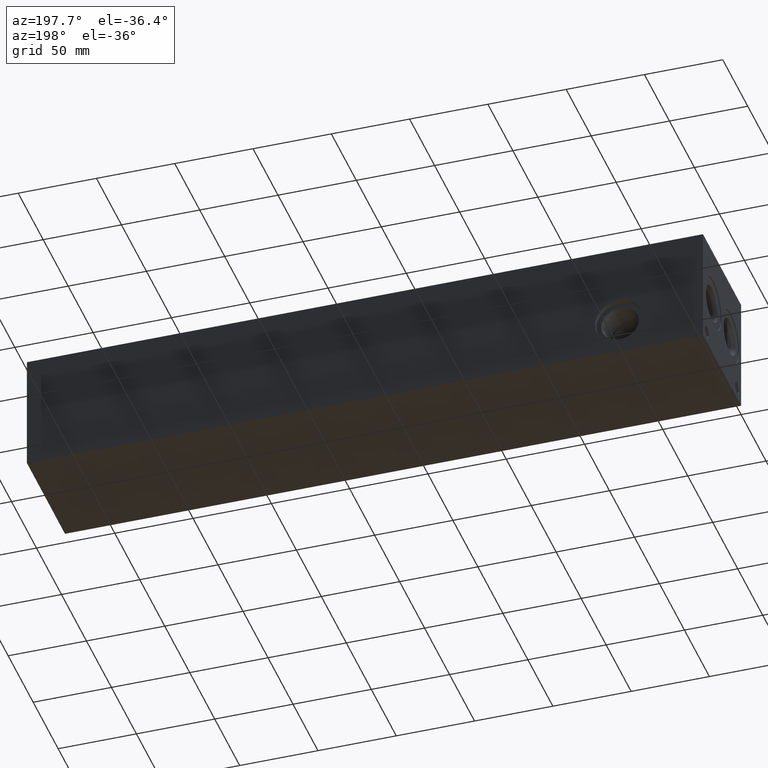
[diagram: clean part render]
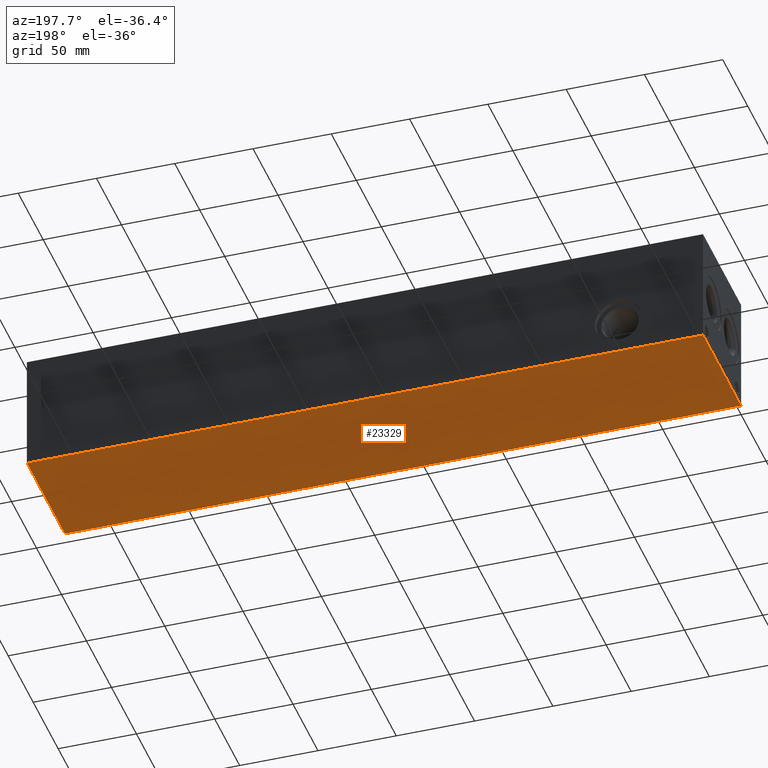
[diagram: same view with one face highlighted and labeled with its STEP entity id]
A machine part, auxiliary view. The second image highlights one B-rep face of the part: STEP entity #23329.
In plain terms, the highlighted planar face has unit normal (0, 0, 1).
Its self-contained STEP definition (entity closure, byte-faithful):
#2063=PLANE('',#25137);
#3287=FACE_OUTER_BOUND('',#4767,.T.);
#4767=EDGE_LOOP('',(#21116,#21117,#21118,#21119));
#4812=LINE('',#30933,#6686);
#6166=LINE('',#38013,#8040);
#6225=LINE('',#38285,#8099);
#6640=LINE('',#40892,#8514);
#6686=VECTOR('',#25208,10.);
#8040=VECTOR('',#27508,10.);
#8099=VECTOR('',#27621,10.);
#8514=VECTOR('',#30592,10.);
#9106=VERTEX_POINT('',#30931);
#9107=VERTEX_POINT('',#30932);
#10376=VERTEX_POINT('',#38012);
#10434=VERTEX_POINT('',#38284);
#11421=EDGE_CURVE('',#9106,#9107,#4812,.T.);
#13307=EDGE_CURVE('',#9107,#10376,#6166,.T.);
#13390=EDGE_CURVE('',#10434,#9106,#6225,.T.);
#14604=EDGE_CURVE('',#10376,#10434,#6640,.T.);
#21116=ORIENTED_EDGE('',*,*,#11421,.F.);
#21117=ORIENTED_EDGE('',*,*,#13390,.F.);
#21118=ORIENTED_EDGE('',*,*,#14604,.F.);
#21119=ORIENTED_EDGE('',*,*,#13307,.F.);
#23329=ADVANCED_FACE('',(#3287),#2063,.F.);
#25137=AXIS2_PLACEMENT_3D('',#40897,#30600,#30601);
#25208=DIRECTION('',(1.,0.,0.));
#27508=DIRECTION('',(0.,1.,0.));
#27621=DIRECTION('',(0.,-1.,0.));
#30592=DIRECTION('',(-1.,0.,0.));
#30600=DIRECTION('center_axis',(0.,0.,1.));
#30601=DIRECTION('ref_axis',(1.,0.,0.));
#30931=CARTESIAN_POINT('',(0.,0.,0.));
#30932=CARTESIAN_POINT('',(431.8,0.,0.));
#30933=CARTESIAN_POINT('',(0.,0.,0.));
#38012=CARTESIAN_POINT('',(431.8,76.2,0.));
#38013=CARTESIAN_POINT('',(431.8,0.,0.));
#38284=CARTESIAN_POINT('',(0.,76.2,0.));
#38285=CARTESIAN_POINT('',(0.,76.2,0.));
#40892=CARTESIAN_POINT('',(431.8,76.2,0.));
#40897=CARTESIAN_POINT('Origin',(215.9,38.1,0.));